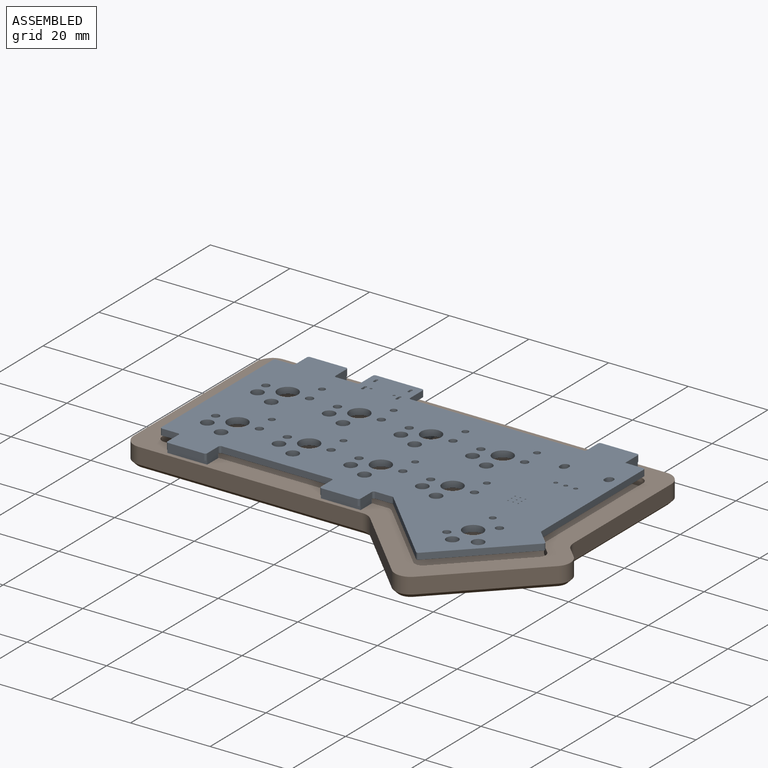
[diagram: assembled view]
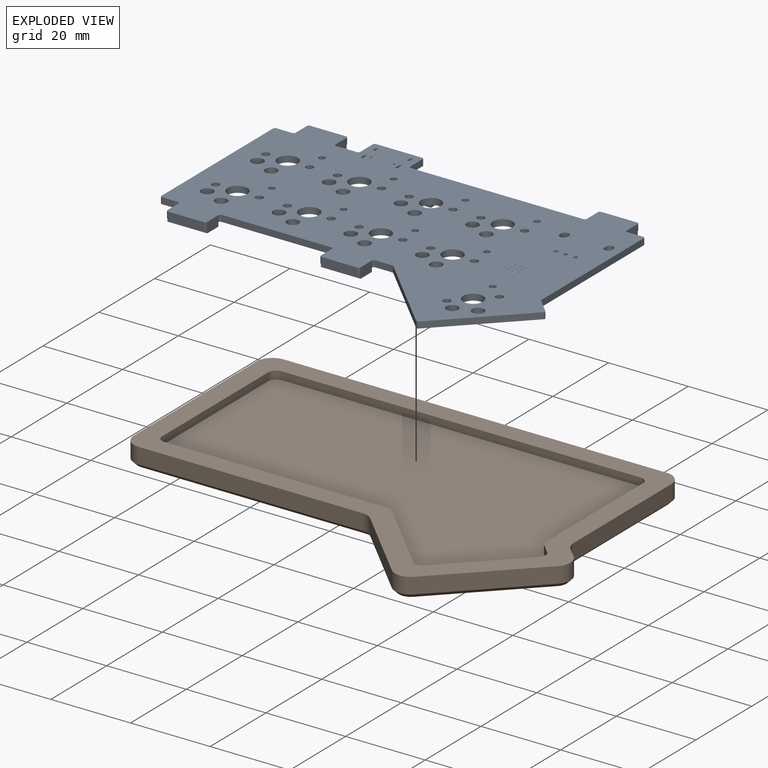
[diagram: exploded view]
GUIDED TOUR — FREECAD ASSEMBLY "3d"

This assembly has 2 components, labeled P0..P1 below (a component is one placed body or linked part; the same part can appear more than once), held together by 0 modeled joints plus 1 derived contact edge. A joint is a constraint between two components; its type names the relative motion it leaves free:
  CONTACT — a derived adjacency edge — the two components touch in the source model (clearance under 2% of the assembly's diagonal); it is measured from the geometry, not a modeled constraint.
Axis/direction vectors are unit vectors and 'through' points are millimeter coordinates, both in the assembly's world frame.

MATES
  1. CONTACT "contact_0_1": P0 <-> P1, contact direction (0.000, 0.000, -1.000) through (-77.40, 33.64, -2.10) mm (derived from contact, not a modeled constraint)

ASSEMBLY ORDER
  1. P1 — the base component [order verified]
  2. P0 [order verified]
Order-tag legend:
  [order verified] — this step's position reverses a verified removal order: the component was checked to insert without passing through the ones already placed.

Of the 2 components, 2 carry a construction recipe — the FreeCAD feature program (sketches with constraints, then the solid features that consume them) that regenerates the part from scratch, quoted from this document or from the linked companion document it references; the rest are supplied as boundary geometry only. The tour below walks the components in assembly order: each is shown spotlighted twice — in the assembled view, then in the exploded view, where a leader line traces a displaced component back to its assembled socket (components that stay in place when exploded have no leader line; saturated green if recipe-attached, orange if geometry-only; every other component desaturated gray) — followed by its recipe or geometry summary and the mates that hold it.
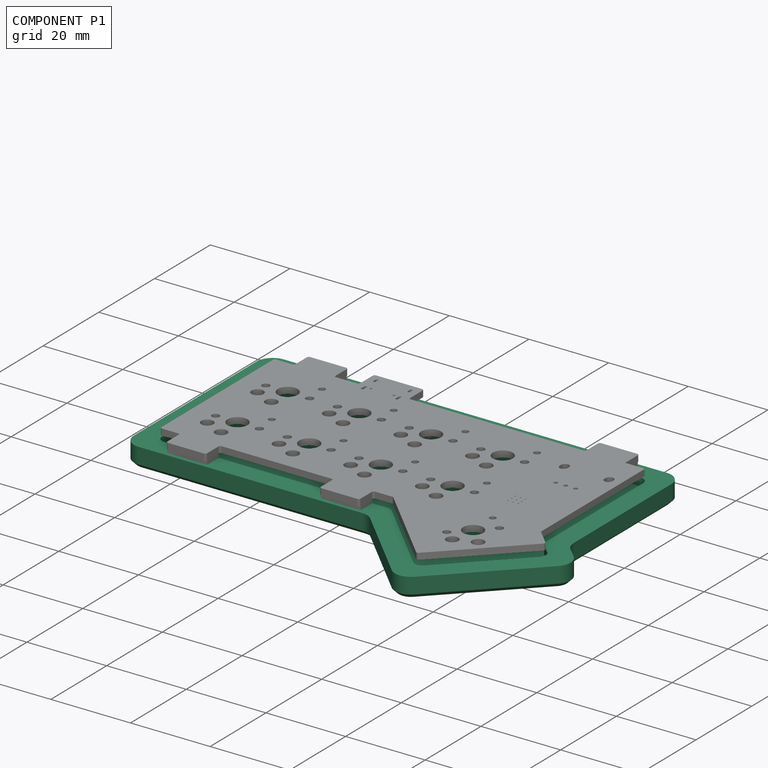
[diagram: component P1 — assembled]
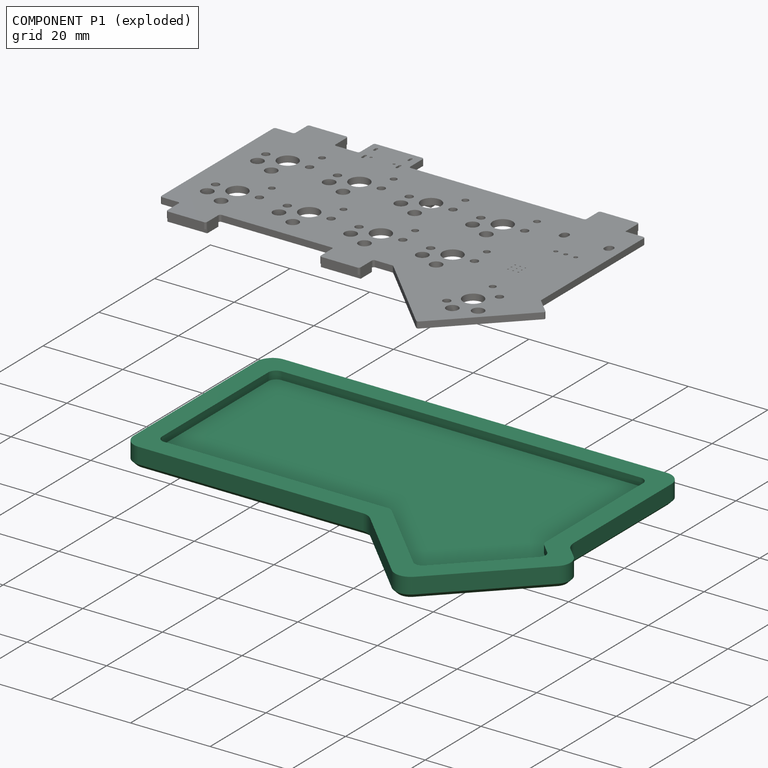
[diagram: component P1 — exploded]
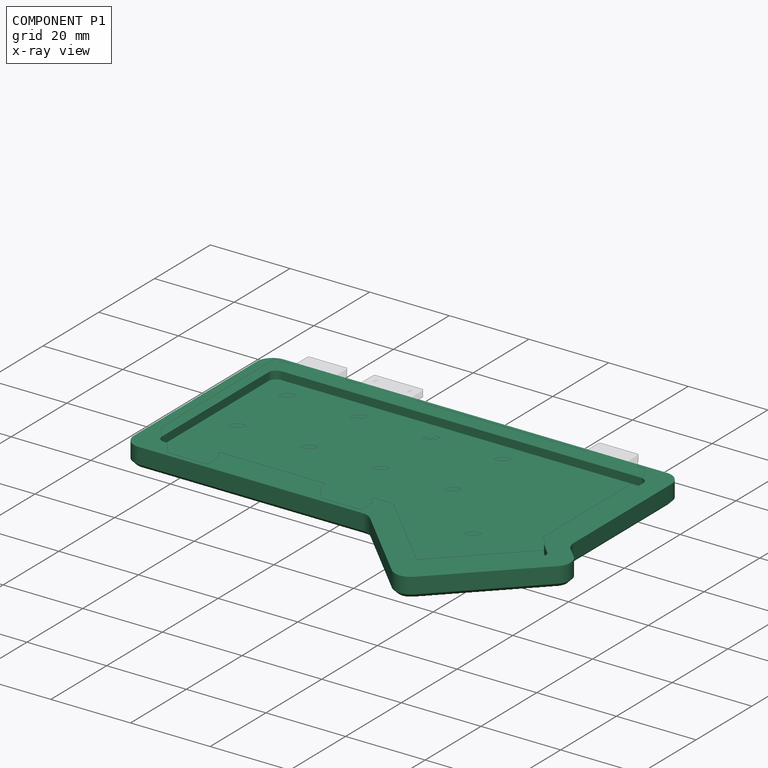
[diagram: component P1 — x-ray view]
COMPONENT P1 — recipe-attached ("Body001", modeled in this document).
Held by: resting contact with P0 (derived edge).
Construction recipe (the document's own serialized feature program — sketch geometry with constraints, then the solid features built on it; lengths are millimeters unless a unit is written):

FEATURE [Sketcher::SketchObject] Sketch002
  FullyConstrained = true
  MapMode = 5
  Support = -> [XY_Plane008]
  sketch-geometry (32):
    g0: LineSegment StartX=14.0884 StartY=34.2536 StartZ=0 EndX=-76.0159 EndY=34.2536 EndZ=0
    g1: LineSegment StartX=-78.0159 StartY=32.2536 StartZ=0 EndX=-78.0159 EndY=-5.74598 EndZ=0
    g2: LineSegment StartX=-76.0159 StartY=-7.74598 StartZ=0 EndX=-20.0159 EndY=-7.74598 EndZ=0
    g3: LineSegment StartX=-18.6017 StartY=-8.33177 StartZ=0 EndX=-0.570487 EndY=-26.363 EndZ=0
    g4: LineSegment StartX=2.25794 StartY=-26.363 StartZ=0 EndX=19.2285 EndY=-9.39243 EndZ=0
    g5: LineSegment StartX=19.2285 StartY=-6.564 StartZ=0 EndX=16.6742 EndY=-4.00969 EndZ=0
    g6: LineSegment StartX=16.0884 StartY=-2.59548 StartZ=0 EndX=16.0884 EndY=32.2536 EndZ=0
    g7: LineSegment StartX=17.0884 StartY=39.2536 StartZ=0 EndX=-79.0159 EndY=39.2536 EndZ=0
    g8: LineSegment StartX=-83.0159 StartY=35.2536 StartZ=0 EndX=-83.0159 EndY=-8.74598 EndZ=0
    g9: LineSegment StartX=-79.0159 StartY=-12.746 StartZ=0 EndX=-22.9154 EndY=-12.746 EndZ=0
    g10: LineSegment StartX=-20.087 StartY=-13.9176 StartZ=0 EndX=-1.9847 EndY=-32.0198 EndZ=0
    g11: LineSegment StartX=3.67215 StartY=-32.0198 StartZ=0 EndX=24.8854 EndY=-10.8066 EndZ=0
    g12: LineSegment StartX=24.8854 StartY=-5.14979 StartZ=0 EndX=22.26 EndY=-2.52441 EndZ=0
    g13: LineSegment StartX=21.0884 StartY=0.304015 StartZ=0 EndX=21.0884 EndY=35.2536 EndZ=0
    g14: GeomPoint X=15.0882 Y=33.7536 Z=0
    g15: ArcOfCircle CenterX=14.0884 CenterY=32.2536 CenterZ=0 NormalX=0 NormalY=0 NormalZ=1 AngleXU=0 Radius=2 StartAngle=0 EndAngle=1.5708
    g16: ArcOfCircle CenterX=17.0884 CenterY=35.2536 CenterZ=0 NormalX=0 NormalY=0 NormalZ=1 AngleXU=0 Radius=4 StartAngle=5e-16 EndAngle=1.5708
    g17: GeomPoint X=15.5884 Y=33.254 Z=0
    g18: ArcOfCircle CenterX=-79.0159 CenterY=35.2536 CenterZ=0 NormalX=0 NormalY=0 NormalZ=1 AngleXU=0 Radius=4 StartAngle=1.5708 EndAngle=3.14159
    g19: ArcOfCircle CenterX=-79.0159 CenterY=-8.74598 CenterZ=0 NormalX=0 NormalY=0 NormalZ=1 AngleXU=0 Radius=4 StartAngle=3.14159 EndAngle=4.71239
    g20: ArcOfCircle CenterX=0.843727 CenterY=-29.1914 CenterZ=0 NormalX=0 NormalY=0 NormalZ=1 AngleXU=0 Radius=4 StartAngle=3.92699 EndAngle=5.49779
    g21: ArcOfCircle CenterX=22.0569 CenterY=-7.97822 CenterZ=0 NormalX=0 NormalY=0 NormalZ=1 AngleXU=0 Radius=4 StartAngle=5.49779 EndAngle=7.06858
    g22: ArcOfCircle CenterX=25.0884 CenterY=0.304015 CenterZ=0 NormalX=0 NormalY=0 NormalZ=1 AngleXU=0 Radius=4 StartAngle=3.14159 EndAngle=3.92699
    g23: ArcOfCircle CenterX=-22.9154 CenterY=-16.746 CenterZ=0 NormalX=0 NormalY=0 NormalZ=1 AngleXU=0 Radius=4 StartAngle=0.785398 EndAngle=1.5708
    g24: ArcOfCircle CenterX=-76.0159 CenterY=32.2536 CenterZ=0 NormalX=0 NormalY=0 NormalZ=1 AngleXU=0 Radius=2 StartAngle=1.5708 EndAngle=3.14159
    g25: GeomPoint X=-77.5159 Y=33.257 Z=0
    g26: ArcOfCircle CenterX=-76.0159 CenterY=-5.74598 CenterZ=0 NormalX=0 NormalY=0 NormalZ=1 AngleXU=0 Radius=2 StartAngle=3.14159 EndAngle=4.71239
    g27: GeomPoint X=-77.0185 Y=-7.24598 Z=0
    g28: ArcOfCircle CenterX=-20.0159 CenterY=-9.74598 CenterZ=0 NormalX=0 NormalY=0 NormalZ=1 AngleXU=0 Radius=2 StartAngle=0.785398 EndAngle=1.5708
    g29: ArcOfCircle CenterX=0.843727 CenterY=-24.9488 CenterZ=0 NormalX=0 NormalY=0 NormalZ=1 AngleXU=0 Radius=2 StartAngle=3.92699 EndAngle=5.49779
    g30: ArcOfCircle CenterX=17.8143 CenterY=-7.97822 CenterZ=0 NormalX=0 NormalY=0 NormalZ=1 AngleXU=0 Radius=2 StartAngle=5.49779 EndAngle=7.06858
    g31: ArcOfCircle CenterX=18.0884 CenterY=-2.59548 CenterZ=0 NormalX=0 NormalY=0 NormalZ=1 AngleXU=0 Radius=2 StartAngle=3.14159 EndAngle=3.92699
  constraints (78):
    c: Horizontal(g0)
    c: Vertical(g1)
    c: Horizontal(g2)
    c: Vertical(g6)
    c: Horizontal(g7)
    c: Vertical(g8)
    c: Horizontal(g9)
    c: Parallel(g13,g6)
    c: Parallel(g12,g5)
    c: Parallel(g4,g11)
    c: Parallel(g10,g3)
    c: Angle(g12,g13) = 2.35619
    c: Perpendicular(g5,g4)
    c: Perpendicular(g3,g4)
    c: DistanceX(g14) = 15.0882
    c: DistanceY(g14) = 33.7536
    c: Distance(g14,g0) = 0.5
    c: Tangent(g0,g15) = -1.5708
    c: Tangent(g6,g15) = -1.5708
    c: Radius(g15) = 2
    c: Tangent(g7,g16) = -1.5708
    c: Tangent(g13,g16) = -1.5708
    c: Radius(g16) = 4
    c: Distance(g0,g7) = 5
    c: DistanceX(g17) = 15.5884
    c: DistanceY(g17) = 33.254
    c: Distance(g17,g6) = 0.5
    c: Distance(g6,g13) = 5
    c: Tangent(g7,g18) = -1.5708
    c: Tangent(g8,g18) = -1.5708
    c: Tangent(g8,g19) = -1.5708
    c: Tangent(g9,g19) = -1.5708
    c: Tangent(g10,g20) = -1.5708
    c: Tangent(g11,g20) = -1.5708
    c: Tangent(g11,g21) = -1.5708
    c: Tangent(g12,g21) = -1.5708
    c: Radius(g18) = 4
    c: Radius(g19) = 4
    c: Radius(g20) = 4
    c: Radius(g21) = 4
    c: Tangent(g12,g22) = 1.5708
    c: Tangent(g13,g22) = 1.5708
    c: Tangent(g9,g23) = 1.5708
    c: Tangent(g10,g23) = 1.5708
    c: Radius(g22) = 4
    c: Radius(g23) = 4
    c: Tangent(g0,g24) = -1.5708
    c: Tangent(g1,g24) = -1.5708
    c: Radius(g24) = 2
    c: Distance(g1,g8) = 5
    c: DistanceX(g25) = -77.5159
    c: DistanceY(g25) = 33.257
    c: Distance(g25,g1) = 0.5
    c: Tangent(g1,g26) = -1.5708
    c: Tangent(g2,g26) = -1.5708
    c: Radius(g26) = 2
    c: Distance(g2,g9) = 5
    c: DistanceX(g27) = -77.0185
    c: DistanceY(g27) = -7.24598
    c: Distance(g27,g2) = 0.5
    c: Tangent(g2,g28) = 1.5708
    c: Tangent(g3,g28) = 1.5708
    c: Radius(g28) = 2
    c: Tangent(g3,g29) = -1.5708
    c: Tangent(g4,g29) = -1.5708
    c: Tangent(g4,g30) = -1.5708
    c: Tangent(g5,g30) = -1.5708
    c: Tangent(g5,g31) = 1.5708
    c: Tangent(g6,g31) = 1.5708
    c: Radius(g31) = 2
    c: Radius(g30) = 2
    c: Radius(g29) = 2
    c: Distance(g3,g10) = 5
    c: Distance(g5,g12) = 5
    c: Distance(g4,g11) = 5
    c: Distance(g2) = 56
    c: Distance(g3) = 25.5
    c: Distance(g4) = 24
FEATURE [PartDesign::Pad] Pad002
  Direction = (0,0,1)
  Length = 2
  Length2 = 10
  Profile = -> Sketch002
  ReferenceAxis = -> Sketch002 [N_Axis]
  Reversed = true
  Type = 0
FEATURE [Sketcher::SketchObject] Sketch003
  ExternalGeometry = -> [Pad002]
  FullyConstrained = true
  MapMode = 5
  Placement = pos=(0,0,-2) rot=(1,0,0;3.14159rad)
  Support = -> [Pad002]
  sketch-geometry (14):
    g0: LineSegment StartX=-79.0159 StartY=12.746 StartZ=0 EndX=-22.9154 EndY=12.746 EndZ=0
    g1: LineSegment StartX=-20.087 StartY=13.9176 StartZ=0 EndX=-1.9847 EndY=32.0198 EndZ=0
    g2: LineSegment StartX=3.67215 StartY=32.0198 StartZ=0 EndX=24.8854 EndY=10.8066 EndZ=0
    g3: LineSegment StartX=24.8854 StartY=5.14979 StartZ=0 EndX=22.26 EndY=2.52441 EndZ=0
    g4: LineSegment StartX=21.0884 StartY=-0.304015 StartZ=0 EndX=21.0884 EndY=-35.2536 EndZ=0
    g5: LineSegment StartX=17.0884 StartY=-39.2536 StartZ=0 EndX=-79.0159 EndY=-39.2536 EndZ=0
    g6: LineSegment StartX=-83.0159 StartY=-35.2536 StartZ=0 EndX=-83.0159 EndY=8.74598 EndZ=0
    g7: ArcOfCircle CenterX=-79.0159 CenterY=8.74598 CenterZ=0 NormalX=0 NormalY=0 NormalZ=1 AngleXU=0 Radius=4 StartAngle=1.5708 EndAngle=3.14159
    g8: ArcOfCircle CenterX=-79.0159 CenterY=-35.2536 CenterZ=0 NormalX=0 NormalY=0 NormalZ=1 AngleXU=0 Radius=4 StartAngle=3.14159 EndAngle=4.71239
    g9: ArcOfCircle CenterX=17.0884 CenterY=-35.2536 CenterZ=0 NormalX=0 NormalY=0 NormalZ=1 AngleXU=0 Radius=4 StartAngle=4.71239 EndAngle=6.28319
    g10: ArcOfCircle CenterX=25.0884 CenterY=-0.304015 CenterZ=0 NormalX=0 NormalY=0 NormalZ=1 AngleXU=0 Radius=4 StartAngle=2.35619 EndAngle=3.14159
    g11: ArcOfCircle CenterX=22.0569 CenterY=7.97822 CenterZ=0 NormalX=0 NormalY=0 NormalZ=1 AngleXU=0 Radius=4 StartAngle=5.49779 EndAngle=7.06858
    g12: ArcOfCircle CenterX=0.843727 CenterY=29.1914 CenterZ=0 NormalX=0 NormalY=0 NormalZ=1 AngleXU=0 Radius=4 StartAngle=0.785398 EndAngle=2.35619
    g13: ArcOfCircle CenterX=-22.9154 CenterY=16.746 CenterZ=0 NormalX=0 NormalY=0 NormalZ=1 AngleXU=0 Radius=4 StartAngle=4.71239 EndAngle=5.49779
  constraints (29):
    c: Horizontal(g0)
    c: Vertical(g4)
    c: Horizontal(g5)
    c: Vertical(g6)
    c: Tangent(g0,g7) = 1.5708
    c: Tangent(g6,g7) = 1.5708
    c: Tangent(g5,g8) = 1.5708
    c: Tangent(g6,g8) = 1.5708
    c: Tangent(g4,g9) = 1.5708
    c: Tangent(g5,g9) = 1.5708
    c: Tangent(g3,g10) = -1.5708
    c: Tangent(g4,g10) = -1.5708
    c: Tangent(g2,g11) = 1.5708
    c: Tangent(g3,g11) = 1.5708
    c: Tangent(g1,g12) = 1.5708
    c: Tangent(g2,g12) = 1.5708
    c: Tangent(g0,g13) = -1.5708
    c: Tangent(g1,g13) = -1.5708
    c: Radius(g13) = 4
    c: Radius(g7) = 4
    c: Radius(g9) = 4
    c: Radius(g10) = 4
    c: Radius(g11) = 4
    c: Coincident(g3,g-9)
    c: Coincident(g-9,g3)
    c: Coincident(g2,g-3)
    c: Coincident(g1,g-4)
    c: Coincident(g6,g-6)
    c: Coincident(g5,g-7)
FEATURE [PartDesign::Pad] Pad003
  BaseFeature = -> Pad002
  Direction = (0,0,-1)
  Length = 3
  Length2 = 10
  Profile = -> Sketch003
  ReferenceAxis = -> Sketch003 [N_Axis]
  Type = 0
FEATURE [PartDesign::Chamfer] Chamfer
  Angle = 45
  Base = -> Pad003 [Face33]
  BaseFeature = -> Pad003
  ChamferType = 0
  FlipDirection = false
  Size = 1
  Size2 = 1
  SupportTransform = false
  UseAllEdges = false
FEATURE [PartDesign::Body] Body001
  Group = -> [Sketch002,Pad002,Sketch003,Pad003,Chamfer]
  Origin = -> Origin008
  Placement = pos=(0,0,-2.6) rot=(0,0,1;0rad)
  Tip = -> Chamfer
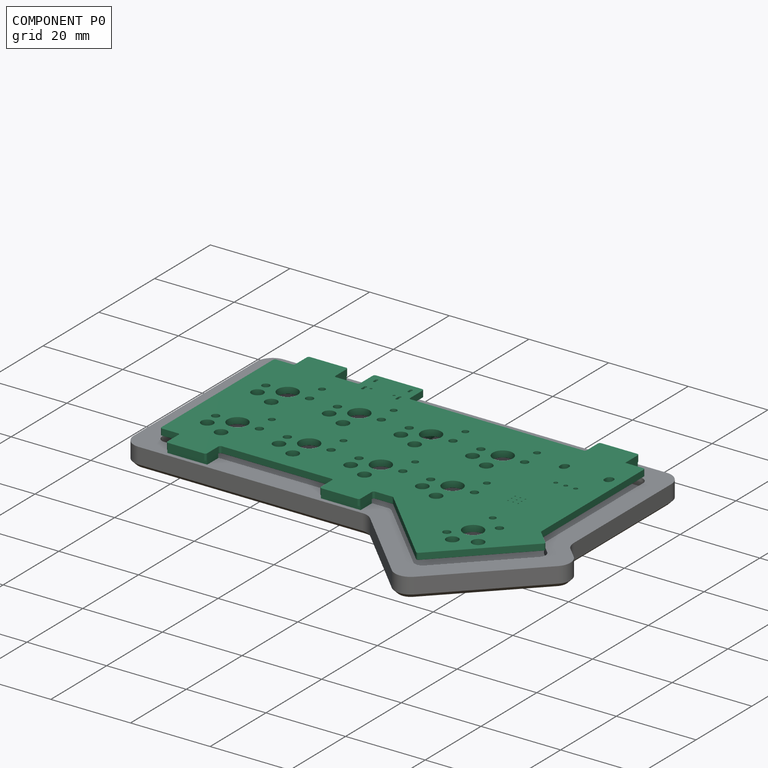
[diagram: component P0 — assembled]
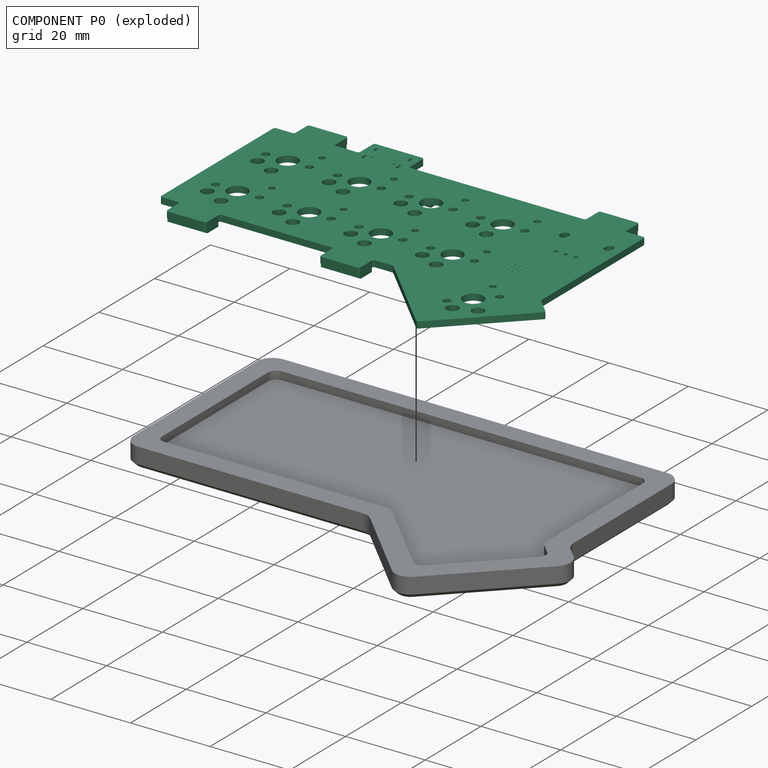
[diagram: component P0 — exploded]
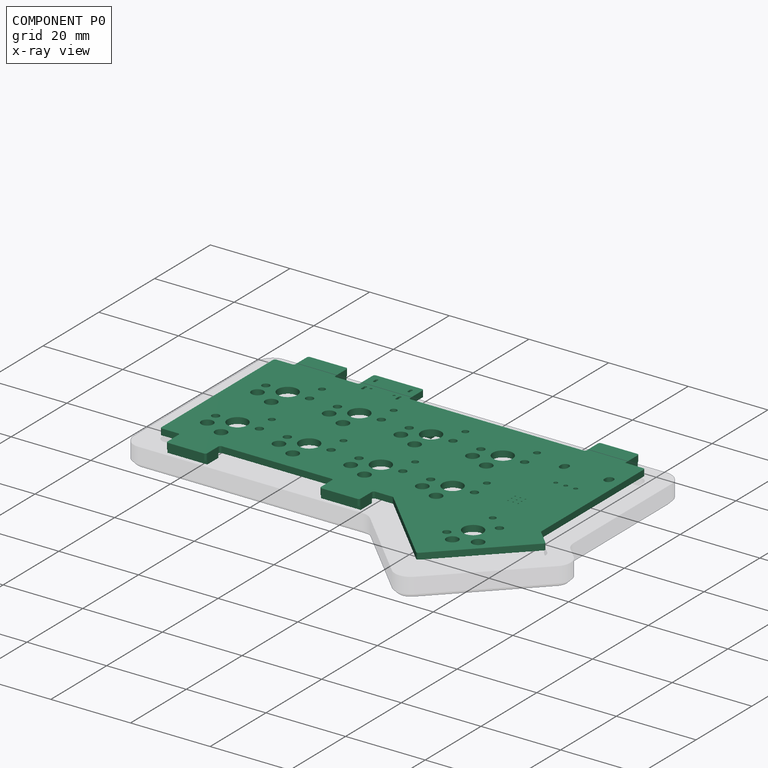
[diagram: component P0 — x-ray view]
COMPONENT P0 — recipe-attached ("main", modeled in this document).
Held by: resting contact with P1 (derived edge).
Construction recipe (the document's own serialized feature program — sketch geometry with constraints, then the solid features built on it; lengths are millimeters unless a unit is written):

FEATURE [Sketcher::SketchObject] Sketch  label="Sketch_converted"
  FullyConstrained = false
  Placement = pos=(0,0,-1.6) rot=(0,0,1;3.14159rad)
  sketch-geometry (157):
    g0: LineSegment StartX=63.0185 StartY=12.2448 StartZ=0 EndX=72.0185 EndY=12.2448 EndZ=0
    g1: ArcOfCircle CenterX=72.0185 CenterY=11.7448 CenterZ=0 NormalX=0 NormalY=0 NormalZ=1 AngleXU=1.57079 Radius=0.500001 StartAngle=4.71239 EndAngle=6.28319
    g2: LineSegment StartX=72.5185 StartY=11.7448 StartZ=0 EndX=72.5185 EndY=7.74485 EndZ=0
    g3: ArcOfCircle CenterX=73.0185 CenterY=7.74485 CenterZ=0 NormalX=0 NormalY=0 NormalZ=1 AngleXU=-1.5708 Radius=0.500001 StartAngle=4.71239 EndAngle=6.28319
    g4: LineSegment StartX=73.0185 StartY=7.24485 StartZ=0 EndX=77.0185 EndY=7.24485 EndZ=0
    g5: ArcOfCircle CenterX=77.0185 CenterY=6.74485 CenterZ=0 NormalX=0 NormalY=0 NormalZ=1 AngleXU=1.57079 Radius=0.500001 StartAngle=4.71239 EndAngle=6.28319
    g6: LineSegment StartX=77.5185 StartY=6.74485 StartZ=0 EndX=77.5185 EndY=-33.2536 EndZ=0
    g7: ArcOfCircle CenterX=77.0185 CenterY=-33.2536 CenterZ=0 NormalX=0 NormalY=0 NormalZ=1 AngleXU=-2.66714e-06 Radius=0.500001 StartAngle=4.71239 EndAngle=6.28319
    g8: LineSegment StartX=77.0185 StartY=-33.7536 StartZ=0 EndX=73.0185 EndY=-33.7536 EndZ=0
    g9: ArcOfCircle CenterX=73.0185 CenterY=-34.2536 CenterZ=0 NormalX=0 NormalY=0 NormalZ=1 AngleXU=3.14159 Radius=0.500001 StartAngle=4.71239 EndAngle=6.28319
    g10: LineSegment StartX=72.5185 StartY=-34.2536 StartZ=0 EndX=72.5185 EndY=-38.2536 EndZ=0
    g11: ArcOfCircle CenterX=72.0185 CenterY=-38.2536 CenterZ=0 NormalX=0 NormalY=0 NormalZ=1 AngleXU=-2.66714e-06 Radius=0.500001 StartAngle=4.71239 EndAngle=6.28319
    g12: LineSegment StartX=72.0185 StartY=-38.7536 StartZ=0 EndX=63.0185 EndY=-38.7536 EndZ=0
    g13: ArcOfCircle CenterX=63.0185 CenterY=-38.2536 CenterZ=0 NormalX=0 NormalY=0 NormalZ=1 AngleXU=-1.5708 Radius=0.500001 StartAngle=4.71239 EndAngle=6.28319
    g14: LineSegment StartX=62.5185 StartY=-38.2536 StartZ=0 EndX=62.5185 EndY=-34.2536 EndZ=0
    g15: ArcOfCircle CenterX=62.0185 CenterY=-34.2536 CenterZ=0 NormalX=0 NormalY=0 NormalZ=1 AngleXU=1.57079 Radius=0.500001 StartAngle=4.71239 EndAngle=6.28319
    g16: LineSegment StartX=62.0185 StartY=-33.7536 StartZ=0 EndX=56.7856 EndY=-33.7536 EndZ=0
    g17: ArcOfCircle CenterX=56.7856 CenterY=-34.2536 CenterZ=0 NormalX=0 NormalY=0 NormalZ=1 AngleXU=3.14159 Radius=0.500001 StartAngle=4.71239 EndAngle=6.28319
    g18: LineSegment StartX=56.2856 StartY=-34.2536 StartZ=0 EndX=56.2856 EndY=-38.7036 EndZ=0
    g19: ArcOfCircle CenterX=55.7856 CenterY=-38.7036 CenterZ=0 NormalX=0 NormalY=0 NormalZ=1 AngleXU=-2.66714e-06 Radius=0.500001 StartAngle=4.71239 EndAngle=6.28319
    g20: LineSegment StartX=55.7856 StartY=-39.2036 StartZ=0 EndX=44.2464 EndY=-39.2036 EndZ=0
    g21: ArcOfCircle CenterX=44.2464 CenterY=-38.7036 CenterZ=0 NormalX=0 NormalY=0 NormalZ=1 AngleXU=-1.5708 Radius=0.500001 StartAngle=4.71239 EndAngle=6.28319
    g22: LineSegment StartX=43.7464 StartY=-38.7036 StartZ=0 EndX=43.7464 EndY=-34.2536 EndZ=0
    g23: ArcOfCircle CenterX=43.2464 CenterY=-34.2536 CenterZ=0 NormalX=0 NormalY=0 NormalZ=1 AngleXU=1.57079 Radius=0.500001 StartAngle=4.71239 EndAngle=6.28319
    g24: LineSegment StartX=43.2464 StartY=-33.7536 StartZ=0 EndX=-0.088353 EndY=-33.7536 EndZ=0
    g25: ArcOfCircle CenterX=-0.0883517 CenterY=-34.2536 CenterZ=0 NormalX=0 NormalY=0 NormalZ=1 AngleXU=3.14159 Radius=0.500001 StartAngle=4.71239 EndAngle=6.28319
    g26: LineSegment StartX=-0.588353 StartY=-34.2536 StartZ=0 EndX=-0.588353 EndY=-38.2536 EndZ=0
    g27: ArcOfCircle CenterX=-1.08835 CenterY=-38.2536 CenterZ=0 NormalX=0 NormalY=0 NormalZ=1 AngleXU=-2.66714e-06 Radius=0.500001 StartAngle=4.71239 EndAngle=6.28319
    g28: LineSegment StartX=-1.08835 StartY=-38.7536 StartZ=0 EndX=-10.0884 EndY=-38.7536 EndZ=0
    g29: ArcOfCircle CenterX=-10.0884 CenterY=-38.2536 CenterZ=0 NormalX=0 NormalY=0 NormalZ=1 AngleXU=-1.5708 Radius=0.500001 StartAngle=4.71239 EndAngle=6.28319
    g30: LineSegment StartX=-10.5884 StartY=-38.2536 StartZ=0 EndX=-10.5884 EndY=-33.7536 EndZ=0
    g31: LineSegment StartX=-10.5884 StartY=-33.7536 StartZ=0 EndX=-15.0884 EndY=-33.7536 EndZ=0
    g32: ArcOfCircle CenterX=-15.0884 CenterY=-33.2536 CenterZ=0 NormalX=0 NormalY=0 NormalZ=1 AngleXU=-1.5708 Radius=0.500001 StartAngle=4.71239 EndAngle=6.28319
    g33: LineSegment StartX=-15.5884 StartY=-33.2536 StartZ=0 EndX=-15.5884 EndY=3.43475 EndZ=0
    g34: ArcOfCircle CenterX=-16.0884 CenterY=3.43475 CenterZ=0 NormalX=0 NormalY=0 NormalZ=1 AngleXU=0.785355 Radius=0.499999 StartAngle=5.49783 EndAngle=6.28319
    g35: LineSegment StartX=-15.7348 StartY=3.78829 StartZ=0 EndX=-19.354 EndY=7.40834 EndZ=0
    g36: ArcOfCircle CenterX=-18.9874 CenterY=7.74825 CenterZ=0 NormalX=0 NormalY=0 NormalZ=1 AngleXU=-2.39408 Radius=0.499999 StartAngle=4.70887 EndAngle=6.28319
    g37: LineSegment StartX=-19.326 StartY=8.11613 StartZ=0 EndX=-0.955906 EndY=26.4866 EndZ=0
    g38: ArcOfCircle CenterX=-0.602353 CenterY=26.133 CenterZ=0 NormalX=0 NormalY=0 NormalZ=1 AngleXU=2.3562 Radius=0.499997 StartAngle=4.67101 EndAngle=6.28319
    g39: LineSegment StartX=-0.234482 StartY=26.4717 StartZ=0 EndX=18.8464 EndY=7.39129 EndZ=0
    g40: ArcOfCircle CenterX=19.1999 CenterY=7.74484 CenterZ=0 NormalX=0 NormalY=0 NormalZ=1 AngleXU=-1.57079 Radius=0.499992 StartAngle=5.49778 EndAngle=6.28319
    g41: LineSegment StartX=19.1999 StartY=7.24485 StartZ=0 EndX=23.4928 EndY=7.24485 EndZ=0
    g42: ArcOfCircle CenterX=23.4928 CenterY=7.74485 CenterZ=0 NormalX=0 NormalY=0 NormalZ=1 AngleXU=-2.66714e-06 Radius=0.500001 StartAngle=4.71239 EndAngle=6.28319
    g43: LineSegment StartX=23.9928 StartY=7.74485 StartZ=0 EndX=23.9928 EndY=11.7448 EndZ=0
    g44: ArcOfCircle CenterX=24.4928 CenterY=11.7448 CenterZ=0 NormalX=0 NormalY=0 NormalZ=1 AngleXU=3.14159 Radius=0.500001 StartAngle=4.71239 EndAngle=6.28319
    g45: LineSegment StartX=24.4928 StartY=12.2448 StartZ=0 EndX=33.4928 EndY=12.2448 EndZ=0
    g46: ArcOfCircle CenterX=33.4928 CenterY=11.7448 CenterZ=0 NormalX=0 NormalY=0 NormalZ=1 AngleXU=1.57079 Radius=0.500001 StartAngle=4.71239 EndAngle=6.28319
    g47: LineSegment StartX=33.9928 StartY=11.7448 StartZ=0 EndX=33.9928 EndY=7.74485 EndZ=0
    g48: ArcOfCircle CenterX=34.4928 CenterY=7.74485 CenterZ=0 NormalX=0 NormalY=0 NormalZ=1 AngleXU=-1.5708 Radius=0.500001 StartAngle=4.71239 EndAngle=6.28319
    g49: LineSegment StartX=34.4928 StartY=7.24485 StartZ=0 EndX=62.0185 EndY=7.24485 EndZ=0
    g50: ArcOfCircle CenterX=62.0185 CenterY=7.74485 CenterZ=0 NormalX=0 NormalY=0 NormalZ=1 AngleXU=-2.66714e-06 Radius=0.500001 StartAngle=4.71239 EndAngle=6.28319
    g51: LineSegment StartX=62.5185 StartY=7.74485 StartZ=0 EndX=62.5185 EndY=11.7448 EndZ=0
    g52: ArcOfCircle CenterX=63.0185 CenterY=11.7448 CenterZ=0 NormalX=0 NormalY=0 NormalZ=1 AngleXU=3.14159 Radius=0.500001 StartAngle=4.71239 EndAngle=6.28319
    g53: Circle CenterX=-2.81826 CenterY=17.1609 CenterZ=0 NormalX=0 NormalY=0 NormalZ=1 AngleXU=3.14159 Radius=1.5
    g54: Circle CenterX=-7.90943 CenterY=15.181 CenterZ=0 NormalX=0 NormalY=0 NormalZ=1 AngleXU=3.14159 Radius=1.5
    g55: Circle CenterX=0.151587 CenterY=14.8982 CenterZ=0 NormalX=0 NormalY=0 NormalZ=1 AngleXU=3.14159 Radius=0.95
    g56: Circle CenterX=-3.7375 CenterY=11.0091 CenterZ=0 NormalX=0 NormalY=0 NormalZ=1 AngleXU=3.14159 Radius=2.5
    g57: Circle CenterX=-7.62659 CenterY=7.12 CenterZ=0 NormalX=0 NormalY=0 NormalZ=1 AngleXU=3.14159 Radius=0.95
    g58: Circle CenterX=-3.63143 CenterY=3.83195 CenterZ=0 NormalX=0 NormalY=0 NormalZ=1 AngleXU=3.14159 Radius=0.8
    g59: Circle CenterX=-3.9125 CenterY=-4.905 CenterZ=0 NormalX=0 NormalY=0 NormalZ=1 AngleXU=3.14159 Radius=0.175
    g60: Circle CenterX=-3.9125 CenterY=-6.18 CenterZ=0 NormalX=0 NormalY=0 NormalZ=1 AngleXU=3.14159 Radius=0.175
    g61: Circle CenterX=-3.9125 CenterY=-7.455 CenterZ=0 NormalX=0 NormalY=0 NormalZ=1 AngleXU=3.14159 Radius=0.175
    g62: Circle CenterX=-2.6375 CenterY=-4.905 CenterZ=0 NormalX=0 NormalY=0 NormalZ=1 AngleXU=3.14159 Radius=0.175
    g63: Circle CenterX=-1.3625 CenterY=-4.905 CenterZ=0 NormalX=0 NormalY=0 NormalZ=1 AngleXU=3.14159 Radius=0.175
    g64: Circle CenterX=6.5625 CenterY=-4.18 CenterZ=0 NormalX=0 NormalY=0 NormalZ=1 AngleXU=3.14159 Radius=0.95
    g65: Circle CenterX=-2.6375 CenterY=-6.18 CenterZ=0 NormalX=0 NormalY=0 NormalZ=1 AngleXU=3.14159 Radius=0.175
    g66: Circle CenterX=-1.3625 CenterY=-6.18 CenterZ=0 NormalX=0 NormalY=0 NormalZ=1 AngleXU=3.14159 Radius=0.175
    g67: Circle CenterX=-2.6375 CenterY=-7.455 CenterZ=0 NormalX=0 NormalY=0 NormalZ=1 AngleXU=3.14159 Radius=0.175
    g68: Circle CenterX=-1.3625 CenterY=-7.455 CenterZ=0 NormalX=0 NormalY=0 NormalZ=1 AngleXU=3.14159 Radius=0.175
    g69: Circle CenterX=7.0625 CenterY=-9.33 CenterZ=0 NormalX=0 NormalY=0 NormalZ=1 AngleXU=3.14159 Radius=0.8
    g70: Circle CenterX=12.0625 CenterY=1.72 CenterZ=0 NormalX=0 NormalY=0 NormalZ=1 AngleXU=3.14159 Radius=1.5
    g71: Circle CenterX=17.0625 CenterY=-0.48 CenterZ=0 NormalX=0 NormalY=0 NormalZ=1 AngleXU=3.14159 Radius=1.5
    g72: Circle CenterX=12.0625 CenterY=-4.18 CenterZ=0 NormalX=0 NormalY=0 NormalZ=1 AngleXU=3.14159 Radius=2.5
    g73: Circle CenterX=17.5625 CenterY=-4.18 CenterZ=0 NormalX=0 NormalY=0 NormalZ=1 AngleXU=3.14159 Radius=0.95
    g74: Circle CenterX=24.5625 CenterY=-4.18 CenterZ=0 NormalX=0 NormalY=0 NormalZ=1 AngleXU=3.14159 Radius=0.95
    g75: Circle CenterX=25.0625 CenterY=-9.33 CenterZ=0 NormalX=0 NormalY=0 NormalZ=1 AngleXU=3.14159 Radius=0.8
    g76: Circle CenterX=30.0625 CenterY=1.72 CenterZ=0 NormalX=0 NormalY=0 NormalZ=1 AngleXU=3.14159 Radius=1.5
    g77: Circle CenterX=35.0625 CenterY=-0.48 CenterZ=0 NormalX=0 NormalY=0 NormalZ=1 AngleXU=3.14159 Radius=1.5
    g78: Circle CenterX=48.0625 CenterY=1.72 CenterZ=0 NormalX=0 NormalY=0 NormalZ=1 AngleXU=3.14159 Radius=1.5
    g79: Circle CenterX=30.0625 CenterY=-4.18 CenterZ=0 NormalX=0 NormalY=0 NormalZ=1 AngleXU=3.14159 Radius=2.5
    g80: Circle CenterX=35.5625 CenterY=-4.18 CenterZ=0 NormalX=0 NormalY=0 NormalZ=1 AngleXU=3.14159 Radius=0.95
    g81: Circle CenterX=42.5625 CenterY=-4.18 CenterZ=0 NormalX=0 NormalY=0 NormalZ=1 AngleXU=3.14159 Radius=0.95
    g82: Circle CenterX=48.0625 CenterY=-4.18 CenterZ=0 NormalX=0 NormalY=0 NormalZ=1 AngleXU=3.14159 Radius=2.5
    g83: Circle CenterX=43.0625 CenterY=-9.33 CenterZ=0 NormalX=0 NormalY=0 NormalZ=1 AngleXU=3.14159 Radius=0.8
    g84: Circle CenterX=53.0625 CenterY=-0.48 CenterZ=0 NormalX=0 NormalY=0 NormalZ=1 AngleXU=3.14159 Radius=1.5
    g85: Circle CenterX=66.0625 CenterY=1.72 CenterZ=0 NormalX=0 NormalY=0 NormalZ=1 AngleXU=3.14159 Radius=1.5
    g86: Circle CenterX=71.0625 CenterY=-0.48 CenterZ=0 NormalX=0 NormalY=0 NormalZ=1 AngleXU=3.14159 Radius=1.5
    g87: Circle CenterX=53.5625 CenterY=-4.18 CenterZ=0 NormalX=0 NormalY=0 NormalZ=1 AngleXU=3.14159 Radius=0.95
    g88: Circle CenterX=60.5625 CenterY=-4.18 CenterZ=0 NormalX=0 NormalY=0 NormalZ=1 AngleXU=3.14159 Radius=0.95
    g89: Circle CenterX=61.0625 CenterY=-9.33 CenterZ=0 NormalX=0 NormalY=0 NormalZ=1 AngleXU=3.14159 Radius=0.8
    g90: Circle CenterX=66.0625 CenterY=-4.18 CenterZ=0 NormalX=0 NormalY=0 NormalZ=1 AngleXU=3.14159 Radius=2.5
    g91: Circle CenterX=71.5625 CenterY=-4.18 CenterZ=0 NormalX=0 NormalY=0 NormalZ=1 AngleXU=3.14159 Radius=0.95
    g92: Circle CenterX=-9.4375 CenterY=-17.63 CenterZ=0 NormalX=0 NormalY=0 NormalZ=1 AngleXU=3.14159 Radius=0.5
    g93: Circle CenterX=-6.9375 CenterY=-17.63 CenterZ=0 NormalX=0 NormalY=0 NormalZ=1 AngleXU=3.14159 Radius=0.5
    g94: Circle CenterX=-4.4375 CenterY=-17.63 CenterZ=0 NormalX=0 NormalY=0 NormalZ=1 AngleXU=3.14159 Radius=0.5
    g95: Circle CenterX=6.5625 CenterY=-22.18 CenterZ=0 NormalX=0 NormalY=0 NormalZ=1 AngleXU=3.14159 Radius=0.95
    g96: Circle CenterX=12.0625 CenterY=-16.28 CenterZ=0 NormalX=0 NormalY=0 NormalZ=1 AngleXU=3.14159 Radius=1.5
    g97: Circle CenterX=17.0625 CenterY=-18.48 CenterZ=0 NormalX=0 NormalY=0 NormalZ=1 AngleXU=3.14159 Radius=1.5
    g98: Circle CenterX=12.0625 CenterY=-22.18 CenterZ=0 NormalX=0 NormalY=0 NormalZ=1 AngleXU=3.14159 Radius=2.5
    g99: Circle CenterX=17.5625 CenterY=-22.18 CenterZ=0 NormalX=0 NormalY=0 NormalZ=1 AngleXU=3.14159 Radius=0.95
    g100: Circle CenterX=24.5625 CenterY=-22.18 CenterZ=0 NormalX=0 NormalY=0 NormalZ=1 AngleXU=3.14159 Radius=0.95
    g101: LineSegment StartX=-13.5375 StartY=-25.38 StartZ=0 EndX=-13.5375 EndY=-24.88 EndZ=0
    g102: ArcOfCircle CenterX=-12.5375 CenterY=-24.88 CenterZ=0 NormalX=0 NormalY=0 NormalZ=1 AngleXU=1.5708 Radius=1 StartAngle=0 EndAngle=1.5708
    g103: ArcOfCircle CenterX=-12.5375 CenterY=-24.88 CenterZ=0 NormalX=0 NormalY=0 NormalZ=1 AngleXU=-1.44e-14 Radius=1 StartAngle=0 EndAngle=1.5708
    g104: LineSegment StartX=-11.5375 StartY=-24.88 StartZ=0 EndX=-11.5375 EndY=-25.38 EndZ=0
    g105: ArcOfCircle CenterX=-12.5375 CenterY=-25.38 CenterZ=0 NormalX=0 NormalY=0 NormalZ=1 AngleXU=-1.5708 Radius=1 StartAngle=0 EndAngle=1.5708
    g106: ArcOfCircle CenterX=-12.5375 CenterY=-25.38 CenterZ=0 NormalX=0 NormalY=0 NormalZ=1 AngleXU=3.14159 Radius=1 StartAngle=0 EndAngle=1.5708
    g107: LineSegment StartX=-2.3375 StartY=-25.38 StartZ=0 EndX=-2.3375 EndY=-24.88 EndZ=0
    g108: ArcOfCircle CenterX=-1.3375 CenterY=-24.88 CenterZ=0 NormalX=0 NormalY=0 NormalZ=1 AngleXU=1.5708 Radius=1 StartAngle=0 EndAngle=1.5708
    g109: ArcOfCircle CenterX=-1.3375 CenterY=-24.88 CenterZ=0 NormalX=0 NormalY=0 NormalZ=1 AngleXU=-1.44e-14 Radius=1 StartAngle=0 EndAngle=1.5708
    g110: LineSegment StartX=-0.3375 StartY=-24.88 StartZ=0 EndX=-0.3375 EndY=-25.38 EndZ=0
    g111: ArcOfCircle CenterX=-1.3375 CenterY=-25.38 CenterZ=0 NormalX=0 NormalY=0 NormalZ=1 AngleXU=-1.5708 Radius=1 StartAngle=0 EndAngle=1.5708
    g112: ArcOfCircle CenterX=-1.3375 CenterY=-25.38 CenterZ=0 NormalX=0 NormalY=0 NormalZ=1 AngleXU=3.14159 Radius=1 StartAngle=0 EndAngle=1.5708
    g113: Circle CenterX=7.0625 CenterY=-27.33 CenterZ=0 NormalX=0 NormalY=0 NormalZ=1 AngleXU=3.14159 Radius=0.8
    g114: Circle CenterX=25.0625 CenterY=-27.33 CenterZ=0 NormalX=0 NormalY=0 NormalZ=1 AngleXU=3.14159 Radius=0.8
    g115: Circle CenterX=30.0625 CenterY=-16.28 CenterZ=0 NormalX=0 NormalY=0 NormalZ=1 AngleXU=3.14159 Radius=1.5
    g116: Circle CenterX=48.0625 CenterY=-16.28 CenterZ=0 NormalX=0 NormalY=0 NormalZ=1 AngleXU=3.14159 Radius=1.5
    g117: Circle CenterX=35.0625 CenterY=-18.48 CenterZ=0 NormalX=0 NormalY=0 NormalZ=1 AngleXU=3.14159 Radius=1.5
    g118: Circle CenterX=30.0625 CenterY=-22.18 CenterZ=0 NormalX=0 NormalY=0 NormalZ=1 AngleXU=3.14159 Radius=2.5
    g119: Circle CenterX=35.5625 CenterY=-22.18 CenterZ=0 NormalX=0 NormalY=0 NormalZ=1 AngleXU=3.14159 Radius=0.95
    g120: Circle CenterX=42.5625 CenterY=-22.18 CenterZ=0 NormalX=0 NormalY=0 NormalZ=1 AngleXU=3.14159 Radius=0.95
    g121: Circle CenterX=48.0625 CenterY=-22.18 CenterZ=0 NormalX=0 NormalY=0 NormalZ=1 AngleXU=3.14159 Radius=2.5
    g122: Circle CenterX=66.0625 CenterY=-16.28 CenterZ=0 NormalX=0 NormalY=0 NormalZ=1 AngleXU=3.14159 Radius=1.5
    g123: Circle CenterX=53.0625 CenterY=-18.48 CenterZ=0 NormalX=0 NormalY=0 NormalZ=1 AngleXU=3.14159 Radius=1.5
    g124: Circle CenterX=53.5625 CenterY=-22.18 CenterZ=0 NormalX=0 NormalY=0 NormalZ=1 AngleXU=3.14159 Radius=0.95
    g125: Circle CenterX=60.5625 CenterY=-22.18 CenterZ=0 NormalX=0 NormalY=0 NormalZ=1 AngleXU=3.14159 Radius=0.95
    g126: Circle CenterX=71.0625 CenterY=-18.48 CenterZ=0 NormalX=0 NormalY=0 NormalZ=1 AngleXU=3.14159 Radius=1.5
    g127: Circle CenterX=66.0625 CenterY=-22.18 CenterZ=0 NormalX=0 NormalY=0 NormalZ=1 AngleXU=3.14159 Radius=2.5
    g128: Circle CenterX=71.5625 CenterY=-22.18 CenterZ=0 NormalX=0 NormalY=0 NormalZ=1 AngleXU=3.14159 Radius=0.95
    g129: Circle CenterX=43.0625 CenterY=-27.33 CenterZ=0 NormalX=0 NormalY=0 NormalZ=1 AngleXU=3.14159 Radius=0.8
    g130: LineSegment StartX=46.0425 StartY=-32.3 StartZ=0 EndX=46.0425 EndY=-33.4 EndZ=0
    g131: ArcOfCircle CenterX=45.7425 CenterY=-33.4 CenterZ=0 NormalX=0 NormalY=0 NormalZ=1 AngleXU=-1.5708 Radius=0.3 StartAngle=0 EndAngle=1.5708
    g132: ArcOfCircle CenterX=45.7425 CenterY=-33.4 CenterZ=0 NormalX=0 NormalY=0 NormalZ=1 AngleXU=-3.14159 Radius=0.3 StartAngle=0 EndAngle=1.5708
    g133: LineSegment StartX=45.4425 StartY=-33.4 StartZ=0 EndX=45.4425 EndY=-32.3 EndZ=0
    g134: ArcOfCircle CenterX=45.7425 CenterY=-32.3 CenterZ=0 NormalX=0 NormalY=0 NormalZ=1 AngleXU=1.5708 Radius=0.3 StartAngle=0 EndAngle=1.5708
    g135: ArcOfCircle CenterX=45.7425 CenterY=-32.3 CenterZ=0 NormalX=0 NormalY=0 NormalZ=1 AngleXU=2.33e-14 Radius=0.3 StartAngle=0 EndAngle=1.5708
    g136: Circle CenterX=47.1725 CenterY=-33.33 CenterZ=0 NormalX=0 NormalY=0 NormalZ=1 AngleXU=3.14159 Radius=0.3
    g137: LineSegment StartX=46.0425 StartY=-36.62 StartZ=0 EndX=46.0425 EndY=-37.42 EndZ=0
    g138: ArcOfCircle CenterX=45.7425 CenterY=-37.42 CenterZ=0 NormalX=0 NormalY=0 NormalZ=1 AngleXU=-1.5708 Radius=0.3 StartAngle=0 EndAngle=1.5708
    g139: ArcOfCircle CenterX=45.7425 CenterY=-37.42 CenterZ=0 NormalX=0 NormalY=0 NormalZ=1 AngleXU=-3.14159 Radius=0.3 StartAngle=0 EndAngle=1.5708
    g140: LineSegment StartX=45.4425 StartY=-37.42 StartZ=0 EndX=45.4425 EndY=-36.62 EndZ=0
    g141: ArcOfCircle CenterX=45.7425 CenterY=-36.62 CenterZ=0 NormalX=0 NormalY=0 NormalZ=1 AngleXU=1.5708 Radius=0.3 StartAngle=0 EndAngle=1.5708
    g142: ArcOfCircle CenterX=45.7425 CenterY=-36.62 CenterZ=0 NormalX=0 NormalY=0 NormalZ=1 AngleXU=2.33e-14 Radius=0.3 StartAngle=0 EndAngle=1.5708
    g143: Circle CenterX=61.0625 CenterY=-27.33 CenterZ=0 NormalX=0 NormalY=0 NormalZ=1 AngleXU=3.14159 Radius=0.8
    g144: Circle CenterX=52.9525 CenterY=-33.33 CenterZ=0 NormalX=0 NormalY=0 NormalZ=1 AngleXU=3.14159 Radius=0.3
    g145: LineSegment StartX=54.6825 StartY=-32.3 StartZ=0 EndX=54.6825 EndY=-33.4 EndZ=0
    g146: ArcOfCircle CenterX=54.3825 CenterY=-33.4 CenterZ=0 NormalX=0 NormalY=0 NormalZ=1 AngleXU=-1.5708 Radius=0.3 StartAngle=0 EndAngle=1.5708
    g147: ArcOfCircle CenterX=54.3825 CenterY=-33.4 CenterZ=0 NormalX=0 NormalY=0 NormalZ=1 AngleXU=-3.14159 Radius=0.3 StartAngle=0 EndAngle=1.5708
    g148: LineSegment StartX=54.0825 StartY=-33.4 StartZ=0 EndX=54.0825 EndY=-32.3 EndZ=0
    g149: ArcOfCircle CenterX=54.3825 CenterY=-32.3 CenterZ=0 NormalX=0 NormalY=0 NormalZ=1 AngleXU=1.5708 Radius=0.3 StartAngle=0 EndAngle=1.5708
    g150: ArcOfCircle CenterX=54.3825 CenterY=-32.3 CenterZ=0 NormalX=0 NormalY=0 NormalZ=1 AngleXU=2.33e-14 Radius=0.3 StartAngle=0 EndAngle=1.5708
    g151: LineSegment StartX=54.6825 StartY=-36.62 StartZ=0 EndX=54.6825 EndY=-37.42 EndZ=0
    g152: ArcOfCircle CenterX=54.3825 CenterY=-37.42 CenterZ=0 NormalX=0 NormalY=0 NormalZ=1 AngleXU=-1.5708 Radius=0.3 StartAngle=0 EndAngle=1.5708
    g153: ArcOfCircle CenterX=54.3825 CenterY=-37.42 CenterZ=0 NormalX=0 NormalY=0 NormalZ=1 AngleXU=-3.14159 Radius=0.3 StartAngle=0 EndAngle=1.5708
    g154: LineSegment StartX=54.0825 StartY=-37.42 StartZ=0 EndX=54.0825 EndY=-36.62 EndZ=0
    g155: ArcOfCircle CenterX=54.3825 CenterY=-36.62 CenterZ=0 NormalX=0 NormalY=0 NormalZ=1 AngleXU=1.5708 Radius=0.3 StartAngle=0 EndAngle=1.5708
    g156: ArcOfCircle CenterX=54.3825 CenterY=-36.62 CenterZ=0 NormalX=0 NormalY=0 NormalZ=1 AngleXU=2.33e-14 Radius=0.3 StartAngle=0 EndAngle=1.5708
FEATURE [PartDesign::Pad] Pad
  Direction = (0,0,1)
  Length = 1.6
  Length2 = 10
  Placement = pos=(0,0,-1.6) rot=(0,0,1;3.14159rad)
  Profile = -> Sketch
  ReferenceAxis = -> Sketch [N_Axis]
  Type = 0
FEATURE [Sketcher::SketchObject] Sketch001
  ExternalGeometry = -> [Sketch]
  FullyConstrained = true
  MapMode = 5
  Placement = pos=(0,0,-1.6) rot=(0,1,0;3.14159rad)
  Support = -> [Pad]
  sketch-geometry (16):
    g0: LineSegment StartX=62.5185 StartY=38.2536 StartZ=0 EndX=72.5185 EndY=38.2536 EndZ=0
    g1: LineSegment StartX=72.5185 StartY=38.2536 StartZ=0 EndX=72.5185 EndY=34.2536 EndZ=0
    g2: LineSegment StartX=72.5185 StartY=34.2536 StartZ=0 EndX=62.5185 EndY=34.2536 EndZ=0
    g3: LineSegment StartX=62.5185 StartY=34.2536 StartZ=0 EndX=62.5185 EndY=38.2536 EndZ=0
    g4: LineSegment StartX=23.9928 StartY=-7.74485 StartZ=0 EndX=33.9928 EndY=-7.74485 EndZ=0
    g5: LineSegment StartX=33.9928 StartY=-7.74485 StartZ=0 EndX=33.9928 EndY=-11.7448 EndZ=0
    g6: LineSegment StartX=33.9928 StartY=-11.7448 StartZ=0 EndX=23.9928 EndY=-11.7448 EndZ=0
    g7: LineSegment StartX=23.9928 StartY=-11.7448 StartZ=0 EndX=23.9928 EndY=-7.74485 EndZ=0
    g8: LineSegment StartX=62.5185 StartY=-7.74485 StartZ=0 EndX=72.5185 EndY=-7.74485 EndZ=0
    g9: LineSegment StartX=72.5185 StartY=-7.74485 StartZ=0 EndX=72.5185 EndY=-11.7448 EndZ=0
    g10: LineSegment StartX=72.5185 StartY=-11.7448 StartZ=0 EndX=62.5185 EndY=-11.7448 EndZ=0
    g11: LineSegment StartX=62.5185 StartY=-11.7448 StartZ=0 EndX=62.5185 EndY=-7.74485 EndZ=0
    g12: LineSegment StartX=-10.5884 StartY=38.2536 StartZ=0 EndX=-0.588353 EndY=38.2536 EndZ=0
    g13: LineSegment StartX=-0.588353 StartY=38.2536 StartZ=0 EndX=-0.588353 EndY=34.2536 EndZ=0
    g14: LineSegment StartX=-0.588353 StartY=34.2536 StartZ=0 EndX=-10.5884 EndY=34.2536 EndZ=0
    g15: LineSegment StartX=-10.5884 StartY=34.2536 StartZ=0 EndX=-10.5884 EndY=38.2536 EndZ=0
  constraints (44):
    c: Coincident(g0,g1)
    c: Coincident(g1,g2)
    c: Coincident(g2,g3)
    c: Coincident(g3,g0)
    c: Horizontal(g0)
    c: Horizontal(g2)
    c: Vertical(g1)
    c: Vertical(g3)
    c: DistanceX(g0,g0) = 10
    c: DistanceY(g1,g1) = 4
    c: Coincident(g4,g5)
    c: Coincident(g5,g6)
    c: Coincident(g6,g7)
    c: Coincident(g7,g4)
    c: Horizontal(g4)
    c: Horizontal(g6)
    c: Vertical(g5)
    c: Vertical(g7)
    c: DistanceX(g4,g4) = 10
    c: DistanceY(g5,g5) = 4
    c: Coincident(g12,g13)
    c: Coincident(g13,g14)
    c: Coincident(g14,g15)
    c: Coincident(g15,g12)
    c: Horizontal(g12)
    c: Horizontal(g14)
    c: Vertical(g13)
    c: Vertical(g15)
    c: DistanceX(g12,g12) = 10
    c: DistanceY(g13,g13) = 4
    c: Coincident(g8,g9)
    c: Coincident(g9,g10)
    c: Coincident(g10,g11)
    c: Coincident(g11,g8)
    c: Horizontal(g8)
    c: Horizontal(g10)
    c: Vertical(g9)
    c: Vertical(g11)
    c: DistanceX(g8,g8) = 10
    c: DistanceY(g9,g9) = 4
    c: Coincident(g12,g-3)
    c: Coincident(g0,g-4)
    c: Coincident(g4,g-5)
    c: Coincident(g8,g-6)
FEATURE [PartDesign::Pad] Pad001
  BaseFeature = -> Pad
  Direction = (0,0,-1)
  Length = 1
  Length2 = 10
  Placement = pos=(0,0,-1.6) rot=(0,0,1;3.14159rad)
  Profile = -> Sketch001
  ReferenceAxis = -> Sketch001 [N_Axis]
  Type = 0
FEATURE [PartDesign::Body] Body
  Group = -> [Sketch,Pad,Sketch001,Pad001]
  Origin = -> Origin007
  Tip = -> Pad001
PROVENANCE & LICENSES
Assembly and component geometry: a FreeCAD (.FCStd) document from a public repository crawl; components, placements and joints were extracted with FreeCAD and each solid tessellated.
Construction recipes: the document's own serialized feature recipes (and, for linked parts, the recipes of companion documents from the same project).
License: as declared in the source repository (recorded in the dataset sidecar).
Joints: native FreeCAD joints and A2plus constraints are mapped to standard mate types; edges marked 'derived from contact' connect touching components and are measured from the geometry, not modeled.
Verification: 2 of this assembly's 2 components carry a construction recipe (2 from this document itself); the rest are geometry-only. Every component's tessellation passed the extraction mesh gates (mesh-volume checksum against the B-rep where available, bounding-box inflation <= 2%).
Renders: orthographic iso camera (az 35 / el 25); the floor grid conveys scale (grid pitch printed in each image; no ruler). In the exploded view each component is displaced by its stored offset vector: the offsets alone carry the explosion direction (mate normal/axis signs are not orientation cues and do not encode it), and separation distances are assigned per mate-chain, not proportionally to assembly-order depth.
